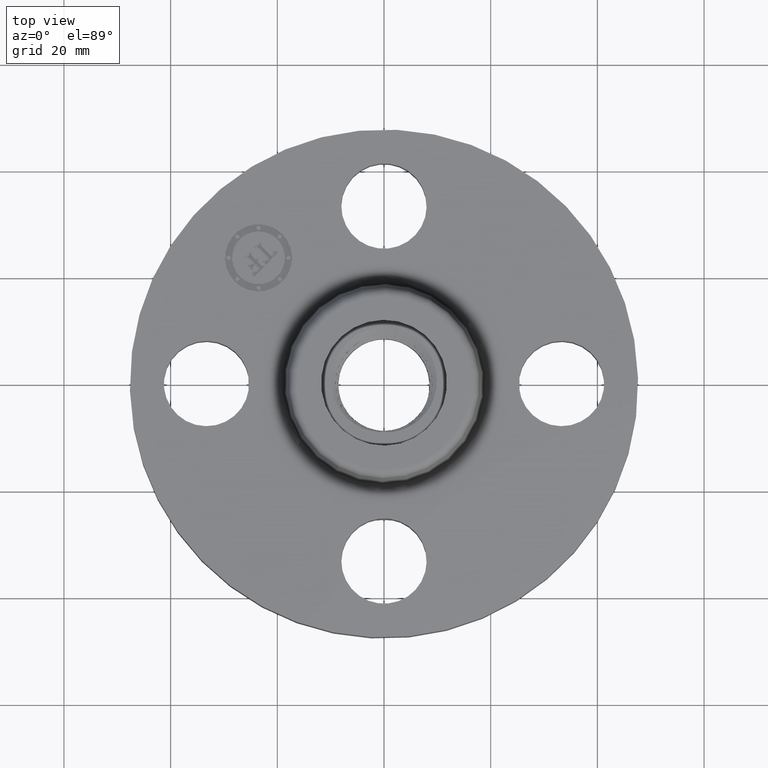
[diagram: clean part render]
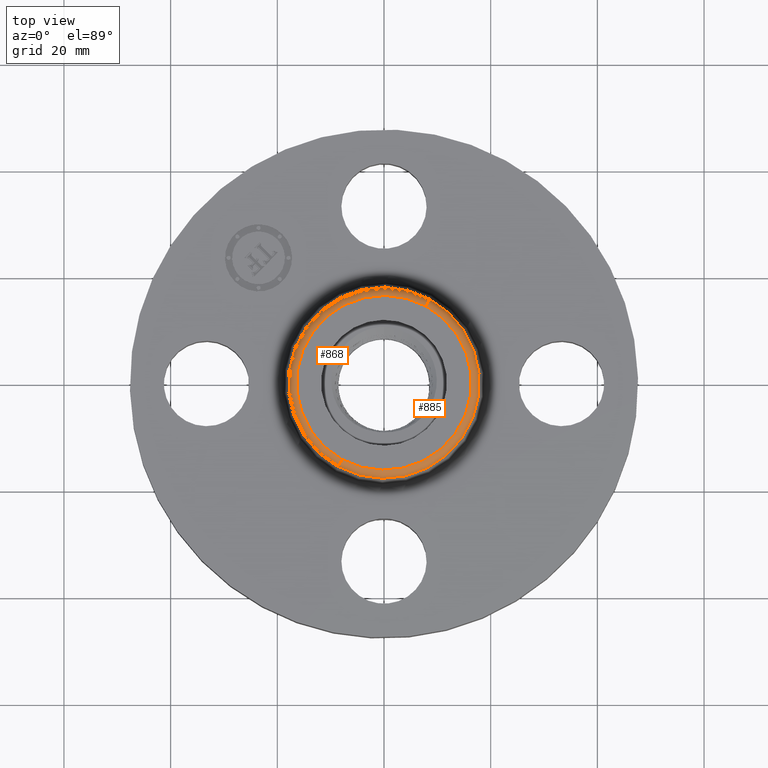
[diagram: same view with one multi-face feature highlighted, each face labeled with its STEP entity id]
A machine part, top view. The highlighted faces form ONE feature: a constant-radius fillet chain: 2 tangent blend faces with common blend radius 1.524 mm. The faces share edges in the B-rep.
Their STEP definitions:
[1] entity #885 (Torus):
#832=AXIS2_PLACEMENT_3D('Torus Axis2P3D',#829,#830,#831) ;
#845=AXIS2_PLACEMENT_3D('Circle Axis2P3D',#843,#844,$) ;
#859=AXIS2_PLACEMENT_3D('Circle Axis2P3D',#857,#858,$) ;
#871=AXIS2_PLACEMENT_3D('Circle Axis2P3D',#869,#870,$) ;
#876=AXIS2_PLACEMENT_3D('Circle Axis2P3D',#874,#875,$) ;
#829=CARTESIAN_POINT('Axis2P3D Location',(0.,0.,0.750000000003)) ;
#838=CARTESIAN_POINT('Vertex',(-0.337554471756,-0.617889315958,0.760418890663)) ;
#840=CARTESIAN_POINT('Vertex',(0.337554471756,0.617889315958,0.760418890663)) ;
#843=CARTESIAN_POINT('Axis2P3D Location',(-0.309225952511,-0.566034309307,0.750000000003)) ;
#847=CARTESIAN_POINT('Vertex',(-0.309225952511,-0.566034309307,0.810000000003)) ;
#854=CARTESIAN_POINT('Vertex',(0.309225952511,0.566034309307,0.810000000003)) ;
#857=CARTESIAN_POINT('Axis2P3D Location',(0.309225952511,0.566034309307,0.750000000003)) ;
#869=CARTESIAN_POINT('Axis2P3D Location',(0.,0.,0.760418890663)) ;
#874=CARTESIAN_POINT('Axis2P3D Location',(0.,0.,0.810000000003)) ;
#830=DIRECTION('Axis2P3D Direction',(0.,0.,-0.0393700787402)) ;
#831=DIRECTION('Axis2P3D XDirection',(0.0188750212049,0.0345504945626,0.)) ;
#844=DIRECTION('Axis2P3D Direction',(0.0345504945626,-0.0188750212049,0.)) ;
#858=DIRECTION('Axis2P3D Direction',(-0.0345504945626,0.0188750212049,0.)) ;
#870=DIRECTION('Axis2P3D Direction',(0.,0.,-0.0393700787402)) ;
#875=DIRECTION('Axis2P3D Direction',(0.,0.,-0.0393700787402)) ;
#880=ORIENTED_EDGE('',*,*,#873,.F.) ;
#881=ORIENTED_EDGE('',*,*,#861,.T.) ;
#882=ORIENTED_EDGE('',*,*,#878,.T.) ;
#883=ORIENTED_EDGE('',*,*,#849,.F.) ;
#885=ADVANCED_FACE('PartBody',(#884),#833,.T.) ;
#846=CIRCLE('generated circle',#845,0.0600000000002) ;
#860=CIRCLE('generated circle',#859,0.0600000000002) ;
#872=CIRCLE('generated circle',#871,0.704081123293) ;
#877=CIRCLE('generated circle',#876,0.644992658112) ;
#833=TOROIDAL_SURFACE('homeo Torus',#832,0.644992658112,0.0600000000002) ;
#849=EDGE_CURVE('',#839,#848,#846,.F.) ;
#861=EDGE_CURVE('',#841,#855,#860,.F.) ;
#873=EDGE_CURVE('',#841,#839,#872,.T.) ;
#878=EDGE_CURVE('',#855,#848,#877,.T.) ;
#879=EDGE_LOOP('',(#880,#881,#882,#883)) ;
#884=FACE_OUTER_BOUND('',#879,.T.) ;
#839=VERTEX_POINT('',#838) ;
#841=VERTEX_POINT('',#840) ;
#848=VERTEX_POINT('',#847) ;
#855=VERTEX_POINT('',#854) ;
[2] entity #868 (Torus):
#832=AXIS2_PLACEMENT_3D('Torus Axis2P3D',#829,#830,#831) ;
#836=AXIS2_PLACEMENT_3D('Circle Axis2P3D',#834,#835,$) ;
#845=AXIS2_PLACEMENT_3D('Circle Axis2P3D',#843,#844,$) ;
#852=AXIS2_PLACEMENT_3D('Circle Axis2P3D',#850,#851,$) ;
#859=AXIS2_PLACEMENT_3D('Circle Axis2P3D',#857,#858,$) ;
#829=CARTESIAN_POINT('Axis2P3D Location',(0.,0.,0.750000000003)) ;
#834=CARTESIAN_POINT('Axis2P3D Location',(0.,0.,0.760418890663)) ;
#838=CARTESIAN_POINT('Vertex',(-0.337554471756,-0.617889315958,0.760418890663)) ;
#840=CARTESIAN_POINT('Vertex',(0.337554471756,0.617889315958,0.760418890663)) ;
#843=CARTESIAN_POINT('Axis2P3D Location',(-0.309225952511,-0.566034309307,0.750000000003)) ;
#847=CARTESIAN_POINT('Vertex',(-0.309225952511,-0.566034309307,0.810000000003)) ;
#850=CARTESIAN_POINT('Axis2P3D Location',(0.,0.,0.810000000003)) ;
#854=CARTESIAN_POINT('Vertex',(0.309225952511,0.566034309307,0.810000000003)) ;
#857=CARTESIAN_POINT('Axis2P3D Location',(0.309225952511,0.566034309307,0.750000000003)) ;
#830=DIRECTION('Axis2P3D Direction',(0.,0.,-0.0393700787402)) ;
#831=DIRECTION('Axis2P3D XDirection',(0.0188750212049,0.0345504945626,0.)) ;
#835=DIRECTION('Axis2P3D Direction',(0.,0.,-0.0393700787402)) ;
#844=DIRECTION('Axis2P3D Direction',(0.0345504945626,-0.0188750212049,0.)) ;
#851=DIRECTION('Axis2P3D Direction',(0.,0.,-0.0393700787402)) ;
#858=DIRECTION('Axis2P3D Direction',(-0.0345504945626,0.0188750212049,0.)) ;
#863=ORIENTED_EDGE('',*,*,#842,.F.) ;
#864=ORIENTED_EDGE('',*,*,#849,.T.) ;
#865=ORIENTED_EDGE('',*,*,#856,.T.) ;
#866=ORIENTED_EDGE('',*,*,#861,.F.) ;
#868=ADVANCED_FACE('PartBody',(#867),#833,.T.) ;
#837=CIRCLE('generated circle',#836,0.704081123293) ;
#846=CIRCLE('generated circle',#845,0.0600000000002) ;
#853=CIRCLE('generated circle',#852,0.644992658112) ;
#860=CIRCLE('generated circle',#859,0.0600000000002) ;
#833=TOROIDAL_SURFACE('homeo Torus',#832,0.644992658112,0.0600000000002) ;
#842=EDGE_CURVE('',#839,#841,#837,.T.) ;
#849=EDGE_CURVE('',#839,#848,#846,.F.) ;
#856=EDGE_CURVE('',#848,#855,#853,.T.) ;
#861=EDGE_CURVE('',#841,#855,#860,.F.) ;
#862=EDGE_LOOP('',(#863,#864,#865,#866)) ;
#867=FACE_OUTER_BOUND('',#862,.T.) ;
#839=VERTEX_POINT('',#838) ;
#841=VERTEX_POINT('',#840) ;
#848=VERTEX_POINT('',#847) ;
#855=VERTEX_POINT('',#854) ;